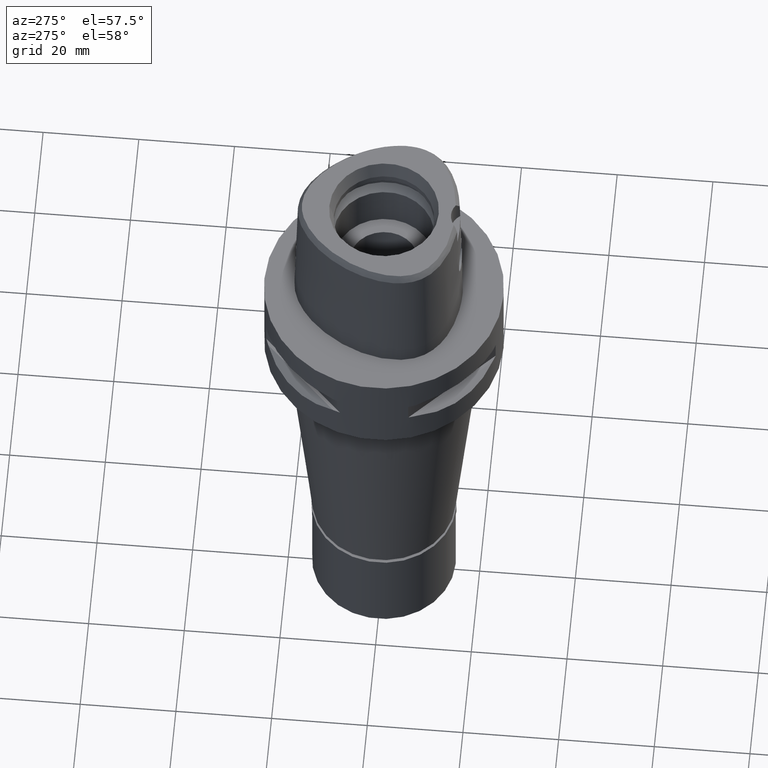
[diagram: clean part render]
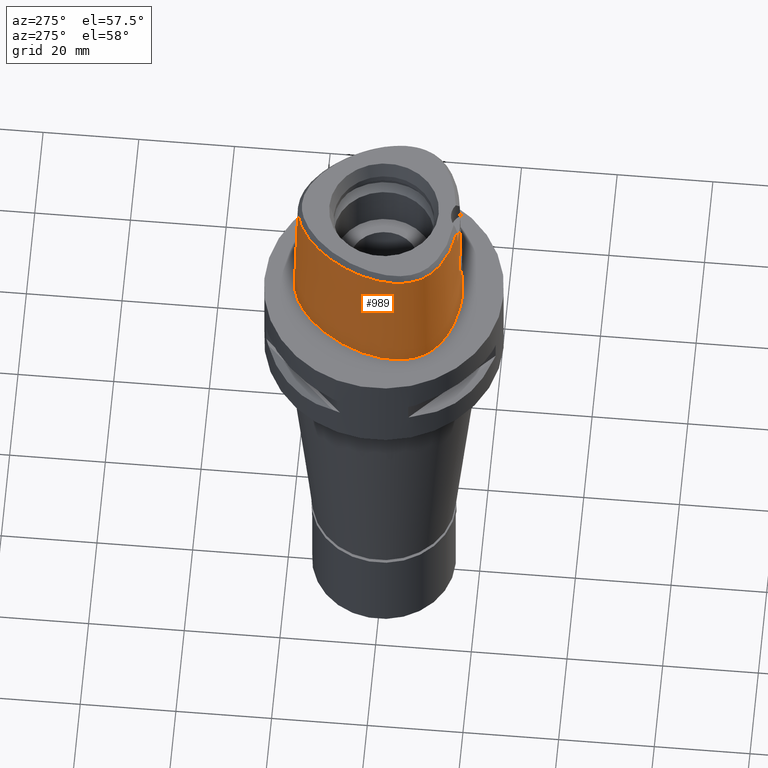
[diagram: same view with one face highlighted and labeled with its STEP entity id]
A machine part, auxiliary view. The second image highlights one B-rep face of the part: STEP entity #989.
In plain terms, the highlighted face is a freeform B-spline surface patch.
Its self-contained STEP definition (entity closure, byte-faithful):
#7 = CARTESIAN_POINT ( 'NONE',  ( -16.53021708525999856, 3.708305584316999859, -0.5704146778458000222 ) ) ;
#55 = CARTESIAN_POINT ( 'NONE',  ( -13.36241663401000146, -12.29868532625000199, 9.316773071482000290 ) ) ;
#78 = CARTESIAN_POINT ( 'NONE',  ( 2.030224829794000080E-07, -15.83752876601000281, 24.70000006102999990 ) ) ;
#84 = CARTESIAN_POINT ( 'NONE',  ( -4.922186781254000110, -15.43572509844000074, 29.09114857014000322 ) ) ;
#85 = CARTESIAN_POINT ( 'NONE',  ( -0.7716804096326577156, -16.02065638628776512, 16.95256773572744180 ) ) ;
#105 = EDGE_CURVE ( 'NONE', #4385, #2100, #3793, .T. ) ;
#106 = CARTESIAN_POINT ( 'NONE',  ( 1.060560759821000065, -15.70738090839000201, 29.09114857014000322 ) ) ;
#107 = CARTESIAN_POINT ( 'NONE',  ( -1.080687980687604410, -16.01283629952124699, 16.85233897233315048 ) ) ;
#116 = CARTESIAN_POINT ( 'NONE',  ( -3.191384176940533557, -15.58827403572775339, 27.24714128231333277 ) ) ;
#158 = CARTESIAN_POINT ( 'NONE',  ( -2.139722381399849827, -15.96867257770622928, 16.17353267031747066 ) ) ;
#175 = CARTESIAN_POINT ( 'NONE',  ( 7.243258786746999801E-11, 18.69499999997999851, 1.586138627847999922E-13 ) ) ;
#201 = CARTESIAN_POINT ( 'NONE',  ( -2.589913444524747366, -16.02530027108256050, 12.38873572170198045 ) ) ;
#234 = CARTESIAN_POINT ( 'NONE',  ( -1.304824586064756042, -16.14367980511039846, 11.24258093297980388 ) ) ;
#300 = CARTESIAN_POINT ( 'NONE',  ( -11.68694516420488760, -13.70394530964122382, 1.311835889211947909E-07 ) ) ;
#312 = CARTESIAN_POINT ( 'NONE',  ( -7.668807715384000190, 15.44980314766999996, 19.20396082081000344 ) ) ;
#337 = CARTESIAN_POINT ( 'NONE',  ( -1.992618747902999754, 18.32080816671000179, 9.316773071482000290 ) ) ;
#360 = CARTESIAN_POINT ( 'NONE',  ( -0.4507704911491000610, 17.98660866496000210, 29.09114857014000322 ) ) ;
#389 = CARTESIAN_POINT ( 'NONE',  ( -16.29641056922999809, 3.623925456147000013, 9.316773071482000290 ) ) ;
#392 = CARTESIAN_POINT ( 'NONE',  ( -3.094715185645000153E-11, 17.98202997909999823, 28.52071728569000086 ) ) ;
#413 = CARTESIAN_POINT ( 'NONE',  ( -17.72574105963000335, -3.269125760297999950, -0.5704146778458000222 ) ) ;
#461 = CARTESIAN_POINT ( 'NONE',  ( -15.78948631527999780, -9.116064173789999003, 19.20396082081000344 ) ) ;
#462 = CARTESIAN_POINT ( 'NONE',  ( -1.331640452534565089, -16.00477934145681047, 16.74576209628363443 ) ) ;
#488 = CARTESIAN_POINT ( 'NONE',  ( -2.757857542921389626, -15.93590525390335344, 15.30389640928843065 ) ) ;
#510 = CARTESIAN_POINT ( 'NONE',  ( -14.25868489179000065, -10.78027802633000221, 29.09114857014000322 ) ) ;
#512 = CARTESIAN_POINT ( 'NONE',  ( -3.027041479268463231, -15.93083733890005682, 14.38613028389027981 ) ) ;
#528 = CARTESIAN_POINT ( 'NONE',  ( -15.58740380354086774, -8.999391780896369042, 28.52071192347005635 ) ) ;
#534 = CARTESIAN_POINT ( 'NONE',  ( -11.44887812848000053, -13.28533852047999986, 19.20396082081000344 ) ) ;
#535 = CARTESIAN_POINT ( 'NONE',  ( -0.6729281202612352741, -16.02259025627639488, 16.97651237904581123 ) ) ;
#584 = CARTESIAN_POINT ( 'NONE',  ( -2.421847348362347496, -16.04659734725423093, 12.14335169878002318 ) ) ;
#602 = CARTESIAN_POINT ( 'NONE',  ( -2.481413756882672850, -16.03938740154342923, 12.22374741087820382 ) ) ;
#712 = CARTESIAN_POINT ( 'NONE',  ( -17.02224577319000076, -0.3128848837978999708, 19.20396082081000344 ) ) ;
#726 = CARTESIAN_POINT ( 'NONE',  ( -13.50690093276619663, -12.48264648179091374, 1.311835889211947909E-07 ) ) ;
#738 = CARTESIAN_POINT ( 'NONE',  ( 0.5455910014330999092, 18.19844124450999701, 19.20396082081000344 ) ) ;
#761 = CARTESIAN_POINT ( 'NONE',  ( -7.514850672415999355, 15.25369622864999997, 29.09114857014000322 ) ) ;
#768 = ORIENTED_EDGE ( 'NONE', *, *, #105, .T. ) ;
#786 = CARTESIAN_POINT ( 'NONE',  ( -16.84071409424999999, -5.352498117318999604, 29.09114857014000322 ) ) ;
#827 = CARTESIAN_POINT ( 'NONE',  ( -16.47905549557009763, -6.962316292880282198, 28.52071192347005635 ) ) ;
#828 = B_SPLINE_CURVE_WITH_KNOTS ( 'NONE', 3,
 ( #2203, #2374, #2350, #3181 ),
 .UNSPECIFIED., .F., .F.,
 ( 4, 4 ),
 ( 0.0000000000000000000, 1.000000000000000000 ),
 .UNSPECIFIED. ) ;
#832 = CARTESIAN_POINT ( 'NONE',  ( 0.7138086210625000927, -15.96808631283000146, 19.20396082081000344 ) ) ;
#845 = ORIENTED_EDGE ( 'NONE', *, *, #1917, .F. ) ;
#862 = CARTESIAN_POINT ( 'NONE',  ( -1.578081282703814647, -15.99520688258742851, 16.61014732801110227 ) ) ;
#885 = CARTESIAN_POINT ( 'NONE',  ( -5.053620743775000257, -16.16974068433999889, -0.5704146778458000222 ) ) ;
#886 = CARTESIAN_POINT ( 'NONE',  ( -1.777739861705566859, -15.98655714082981838, 16.48034954023967202 ) ) ;
#901 = CARTESIAN_POINT ( 'NONE',  ( -3.094715185645000153E-11, 17.98202997909999823, 28.52071728569000086 ) ) ;
#909 = CARTESIAN_POINT ( 'NONE',  ( -2.810669180506640163, -15.93357175435965090, 15.18434255725068383 ) ) ;
#918 = CARTESIAN_POINT ( 'NONE',  ( -3.235121119988999983, -15.64755630481999837, 24.69999999999999929 ) ) ;
#924 = CARTESIAN_POINT ( 'NONE',  ( -17.71143735232331551, -3.269218750022057751, 1.311835889211947909E-07 ) ) ;
#932 = CARTESIAN_POINT ( 'NONE',  ( 6.782386032392523226E-08, -15.90128720080381797, 22.15000025259135086 ) ) ;
#933 = CARTESIAN_POINT ( 'NONE',  ( -1.464230115295341195, -15.99978155752990894, 16.67600899017842764 ) ) ;
#937 = EDGE_CURVE ( 'NONE', #2296, #1189, #4562, .T. ) ;
#976 = CARTESIAN_POINT ( 'NONE',  ( -2.167461438340669400, -16.07478142648848873, 11.85411610869220844 ) ) ;
#989 = ADVANCED_FACE ( 'NONE', ( #2243 ), #2235, .T. ) ;
#990 = CARTESIAN_POINT ( 'NONE',  ( -1.298308557584999745, -16.00668751181000005, 19.20396082081000344 ) ) ;
#998 = CARTESIAN_POINT ( 'NONE',  ( 0.0000000000000000000, -16.02877864023999877, 17.05000000000000071 ) ) ;
#1024 = CARTESIAN_POINT ( 'NONE',  ( -11.46563507770985524, 12.45218749787802182, 1.311835889211947909E-07 ) ) ;
#1035 = CARTESIAN_POINT ( 'NONE',  ( -2.676760126932850259, -16.01335860443739278, 12.53714519678957551 ) ) ;
#1116 = CARTESIAN_POINT ( 'NONE',  ( -1.941729202847999991, 18.07741836403999969, 19.20396082081000344 ) ) ;
#1141 = CARTESIAN_POINT ( 'NONE',  ( -2.043508292958999828, 18.56419796938000033, -0.5704146778458000222 ) ) ;
#1162 = ORIENTED_EDGE ( 'NONE', *, *, #4337, .T. ) ;
#1164 = CARTESIAN_POINT ( 'NONE',  ( -11.28662494105000036, 12.30111481314999899, 9.316773071482000290 ) ) ;
#1166 = DIRECTION ( 'NONE',  ( 3.623592351940885255E-12, 0.02499051285796925065, -0.9996876883642689116 ) ) ;
#1189 = VERTEX_POINT ( 'NONE', #3495 ) ;
#1193 = CARTESIAN_POINT ( 'NONE',  ( -0.4893119563385999737, 18.72969240733000262, -0.5704146778458000222 ) ) ;
#1213 = CARTESIAN_POINT ( 'NONE',  ( -1.321318947042000147, -16.50155084566999975, -0.5704146778458000222 ) ) ;
#1214 = CARTESIAN_POINT ( 'NONE',  ( -2.727932080404931181, -15.93733995233630552, 15.36492654819695858 ) ) ;
#1234 = CARTESIAN_POINT ( 'NONE',  ( -16.00353255302000122, -8.149703182312000749, 29.09114857014000322 ) ) ;
#1235 = CARTESIAN_POINT ( 'NONE',  ( -1.142332392165549937, -16.01097948216498068, 16.82800652385463280 ) ) ;
#1259 = CARTESIAN_POINT ( 'NONE',  ( -15.57503089917999972, -8.992248281211999483, 29.09114857014000322 ) ) ;
#1260 = CARTESIAN_POINT ( 'NONE',  ( -2.789432624428044960, -15.93448362604005197, 15.23385107220370216 ) ) ;
#1266 = EDGE_CURVE ( 'NONE', #2964, #3806, #4324, .T. ) ;
#1272 = CARTESIAN_POINT ( 'NONE',  ( -3.213444811939455636, -15.61774738279276953, 25.97357064115666603 ) ) ;
#1281 = CARTESIAN_POINT ( 'NONE',  ( -1.893775706183914664, 17.84807082153736602, 28.52071192347005635 ) ) ;
#1285 = CARTESIAN_POINT ( 'NONE',  ( -15.05961625865000109, -9.784614150223999829, 29.09114857014000322 ) ) ;
#1286 = CARTESIAN_POINT ( 'NONE',  ( -3.044373801969535442, -15.93377869067411723, 14.19140803545593954 ) ) ;
#1302 = CARTESIAN_POINT ( 'NONE',  ( -4.728927205406693091, 17.73480468449544034, 1.311835889211947909E-07 ) ) ;
#1308 = CARTESIAN_POINT ( 'NONE',  ( -3.048918288824035816, -15.93569181003061708, 14.09458409078624008 ) ) ;
#1356 = CARTESIAN_POINT ( 'NONE',  ( 2.030224829794000080E-07, -15.83752876601000281, 24.70000006102999990 ) ) ;
#1357 = CARTESIAN_POINT ( 'NONE',  ( -2.277845221344286131, -16.06297226044949511, 11.97064251377639188 ) ) ;
#1382 = CARTESIAN_POINT ( 'NONE',  ( -0.3804472261492219953, -16.18126839358999902, 10.95000000000000107 ) ) ;
#1426 = CARTESIAN_POINT ( 'NONE',  ( -1.728596458623000130E-11, -16.45500000000000185, 1.597610932435999867E-13 ) ) ;
#1447 = VERTEX_POINT ( 'NONE', #4477 ) ;
#1466 = CARTESIAN_POINT ( 'NONE',  ( -14.17736240039999984, 8.185312175179999983, 9.316773071482000290 ) ) ;
#1491 = CARTESIAN_POINT ( 'NONE',  ( -17.47781019000000313, -3.270737581811000272, 9.316773071482000290 ) ) ;
#1519 = CARTESIAN_POINT ( 'NONE',  ( -13.96223224902000126, 8.061115401903000688, 19.20396082081000344 ) ) ;
#1544 = CARTESIAN_POINT ( 'NONE',  ( -17.33218229587000181, -5.422849682998000631, 9.316773071482000290 ) ) ;
#1571 = CARTESIAN_POINT ( 'NONE',  ( -4.628819265856999543, 17.52182796168999701, 9.316773071482000290 ) ) ;
#1616 = CARTESIAN_POINT ( 'NONE',  ( -14.26907056455454637, -10.79012254419459715, 28.52071192347005635 ) ) ;
#1620 = CARTESIAN_POINT ( 'NONE',  ( 1.079551361443000124, -16.20136644857999997, 9.316773071482000290 ) ) ;
#1635 = CARTESIAN_POINT ( 'NONE',  ( -13.75951393052603500, 7.944084103042205136, 28.52071192347005635 ) ) ;
#1641 = CARTESIAN_POINT ( 'NONE',  ( -3.033174470079158969, -15.94941370605618047, 13.62317640955322418 ) ) ;
#1667 = CARTESIAN_POINT ( 'NONE',  ( -11.32630896074000049, -13.06981819191000049, 29.09114857014000322 ) ) ;
#1694 = CARTESIAN_POINT ( 'NONE',  ( -2.152758532514000202E-12, -16.18126839358999902, 10.94999999999999929 ) ) ;
#1698 = CARTESIAN_POINT ( 'NONE',  ( -2.816407481551031378, -15.93333177460183236, 15.17063687596105837 ) ) ;
#1720 = CARTESIAN_POINT ( 'NONE',  ( -1.858121229638787231, -15.98284882596964707, 16.42071856142420927 ) ) ;
#1741 = CARTESIAN_POINT ( 'NONE',  ( -2.543826128444698575, -16.03134158490991368, 12.31726274100101115 ) ) ;
#1759 = CARTESIAN_POINT ( 'NONE',  ( -13.05575607724000164, -11.90823715388999915, 29.09114857014000322 ) ) ;
#1768 = CARTESIAN_POINT ( 'NONE',  ( -2.909137552899560220, -15.97627371699405785, 13.08234413149730102 ) ) ;
#1804 = CARTESIAN_POINT ( 'NONE',  ( -2.040572356992104819, 18.55015624676588715, 1.311835889211947909E-07 ) ) ;
#1811 = CARTESIAN_POINT ( 'NONE',  ( -1.572520811365276439, -16.12649376600636231, 11.38472095010702922 ) ) ;
#1887 = CARTESIAN_POINT ( 'NONE',  ( -4.416345268719000572, 17.06979572732999983, 29.09114857014000322 ) ) ;
#1917 = EDGE_CURVE ( 'NONE', #1189, #3218, #2163, .T. ) ;
#1939 = ORIENTED_EDGE ( 'NONE', *, *, #4638, .T. ) ;
#1942 = CARTESIAN_POINT ( 'NONE',  ( 0.3838142946063000105, 18.70350312465999920, -0.5704146778458000222 ) ) ;
#1958 = CARTESIAN_POINT ( 'NONE',  ( -13.06460239553142699, -11.91950051571675218, 28.52071192347005635 ) ) ;
#1989 = CARTESIAN_POINT ( 'NONE',  ( -11.69401646396999972, -13.71637917760999947, -0.5704146778458000222 ) ) ;
#1992 = CARTESIAN_POINT ( 'NONE',  ( -1.671121799475667746, -15.99125384014665485, 16.55147925627117544 ) ) ;
#1997 = VECTOR ( 'NONE', #3479, 1000.000000000000114 ) ;
#2017 = CARTESIAN_POINT ( 'NONE',  ( 1.089046662253999820, -16.44835921866999939, -0.5704146778458000222 ) ) ;
#2018 = CARTESIAN_POINT ( 'NONE',  ( -1.246904710687278373, -16.00770134240468678, 16.78481881917275587 ) ) ;
#2039 = CARTESIAN_POINT ( 'NONE',  ( -11.57144729622999968, -13.50085884904999922, 9.316773071482000290 ) ) ;
#2040 = CARTESIAN_POINT ( 'NONE',  ( -1.154649350552923170, -16.01059875151096890, 16.82300001247303811 ) ) ;
#2065 = CARTESIAN_POINT ( 'NONE',  ( -2.094858927816013683, -15.97106233740291614, 16.21701581232884237 ) ) ;
#2093 = CARTESIAN_POINT ( 'NONE',  ( -0.3789226270081168524, -16.02723154424909779, 17.03294418566285984 ) ) ;
#2099 = ORIENTED_EDGE ( 'NONE', *, *, #2251, .F. ) ;
#2100 = VERTEX_POINT ( 'NONE', #4516 ) ;
#2115 = CARTESIAN_POINT ( 'NONE',  ( -2.828519626698023259, -15.99018834924776833, 12.85893844538390596 ) ) ;
#2137 = CARTESIAN_POINT ( 'NONE',  ( -2.835998777458597075, -15.98895818849806183, 12.87753709205197872 ) ) ;
#2159 = CARTESIAN_POINT ( 'NONE',  ( -2.651693848326381442, -16.01689519106156823, 12.49206992028041441 ) ) ;
#2163 = B_SPLINE_CURVE_WITH_KNOTS ( 'NONE', 3,
 ( #3994, #4668, #2093, #535, #85, #2812, #3943, #107, #3157, #1235, #2040, #4293, #2018, #462, #933, #4744, #862, #4347, #3560, #1992, #3964, #886, #1720, #3191, #2383, #2065, #3589, #158, #4721, #3612, #2357, #3889, #4694, #1214, #488, #1260, #3919, #909, #2833, #1698, #4371, #3213, #2737, #512, #3537, #1286, #1308, #3511, #2463, #1641, #2789, #4321, #1768, #2931, #4109, #2137, #2115, #3263, #4439, #3632, #4792, #1035, #2159, #2883, #201, #2209, #2183, #1741, #602, #584, #4464, #1357, #4415, #4016, #4493, #976, #4767, #2508, #1811, #4035, #3658, #234, #2580, #2531, #3737, #4061, #3284, #4815, #1382, #2904 ),
 .UNSPECIFIED., .F., .F.,
 ( 4, 2, 2, 1, 1, 1, 2, 2, 2, 2, 1, 2, 2, 2, 1, 1, 2, 2, 2, 2, 1, 1, 1, 2, 2, 2, 2, 2, 2, 2, 2, 1, 1, 1, 2, 2, 2, 2, 1, 2, 2, 2, 1, 1, 2, 2, 2, 2, 1, 1, 1, 2, 2, 4 ),
 ( 0.0000000000000000000, 0.06250000000001754152, 0.09375000000002620126, 0.1093750000000305450, 0.1171875000000329042, 0.1210937500000342365, 0.1230468750000351247, 0.1250000000000359990, 0.1562500000000493494, 0.1718750000000557332, 0.1796875000000589251, 0.1835937500000605072, 0.1875000000000620615, 0.2187500000000706935, 0.2343750000000746625, 0.2421875000000770217, 0.2460937500000781875, 0.2500000000000793254, 0.3125000000000955902, 0.3437500000001037503, 0.3593750000001078027, 0.3671875000001095235, 0.3710937500001103562, 0.3730468750001104672, 0.3750000000001105782, 0.4375000000001104672, 0.4687500000001104117, 0.4843750000001104117, 0.5000000000001103562, 0.5625000000001096900, 0.5937500000001090239, 0.6093750000001089129, 0.6171875000001089129, 0.6210937500001089129, 0.6230468750001089129, 0.6250000000001089129, 0.6562500000001036948, 0.6718750000001010303, 0.6796875000000999201, 0.6835937500000992539, 0.6875000000000985878, 0.7187500000000892619, 0.7343750000000845990, 0.7421875000000822675, 0.7460937500000810463, 0.7500000000000798250, 0.8125000000000598410, 0.8437500000000500711, 0.8593750000000450751, 0.8671875000000426326, 0.8710937500000413003, 0.8730468750000406342, 0.8750000000000399680, 1.000000000000000000 ),
 .UNSPECIFIED. ) ;
#2176 = CARTESIAN_POINT ( 'NONE',  ( -17.49754711982549082, -0.2285937505758003085, 1.311835889211947909E-07 ) ) ;
#2183 = CARTESIAN_POINT ( 'NONE',  ( -2.552453281222698322, -16.03022206925516002, 12.33036638904129667 ) ) ;
#2203 = CARTESIAN_POINT ( 'NONE',  ( 2.030224829794000080E-07, -15.83752876601000281, 24.70000006102999990 ) ) ;
#2209 = CARTESIAN_POINT ( 'NONE',  ( -2.567601606275564219, -16.02824055683993620, 12.35375696231732690 ) ) ;
#2222 = EDGE_CURVE ( 'NONE', #2964, #4385, #3167, .T. ) ;
#2235 = B_SPLINE_SURFACE_WITH_KNOTS ( 'NONE', 3, 3, ( 
 ( #4620, #2335, #738, #3818 ),
 ( #1942, #3461, #3038, #3087 ),
 ( #1193, #4595, #3791, #360 ),
 ( #1141, #337, #1116, #2613 ),
 ( #3438, #1571, #2714, #1887 ),
 ( #2663, #4947, #312, #761 ),
 ( #3062, #1164, #2685, #2289 ),
 ( #4898, #1466, #1519, #3366 ),
 ( #7, #389, #4573, #4245 ),
 ( #2986, #4143, #712, #3767 ),
 ( #413, #1491, #4190, #3009 ),
 ( #4547, #1544, #4218, #786 ),
 ( #2638, #2316, #3846, #3535 ),
 ( #2356, #2408, #2382, #1234 ),
 ( #4431, #4645, #461, #1259 ),
 ( #2811, #4320, #4267, #1285 ),
 ( #2736, #3963, #3587, #510 ),
 ( #4346, #55, #4292, #1759 ),
 ( #1989, #2039, #534, #1667 ),
 ( #3190, #3510, #3942, #4807 ),
 ( #885, #3888, #3113, #84 ),
 ( #1213, #3918, #990, #3864 ),
 ( #2788, #2896, #832, #3276 ),
 ( #2017, #1620, #3135, #106 ) ),
 .UNSPECIFIED., .F., .F., .F.,
 ( 4, 1, 1, 1, 1, 1, 1, 1, 1, 1, 1, 1, 1, 1, 1, 1, 1, 1, 1, 1, 1, 4 ),
 ( 4, 4 ),
 ( -0.01173812893898000011, 0.0000000000000000000, 0.04166666666808999803, 0.08333333333469000737, 0.1666666666679000042, 0.2500000000011000090, 0.3333333333342999860, 0.4166666666675999942, 0.5000000000008000267, 0.5416666666674000430, 0.5833333333340000593, 0.6250000000005999645, 0.6458333333339000282, 0.6666666666671999808, 0.6875000000005000445, 0.7083333333337999971, 0.7500000000004000134, 0.7916666666671000607, 0.8333333333336000459, 0.9166666666668999985, 1.000000000000000000, 1.017968513185000035 ),
 ( 2.190544474977999835E-09, 0.9999998882822999091 ),
 .UNSPECIFIED. ) ;
#2243 = FACE_OUTER_BOUND ( 'NONE', #3020, .T. ) ;
#2251 = EDGE_CURVE ( 'NONE', #3218, #1447, #3151, .T. ) ;
#2289 = CARTESIAN_POINT ( 'NONE',  ( -10.90668505380999953, 11.98047074307999971, 29.09114857014000322 ) ) ;
#2296 = VERTEX_POINT ( 'NONE', #78 ) ;
#2305 = CARTESIAN_POINT ( 'NONE',  ( -14.78833380161314182, -11.28232909929586114, 1.311835889211947909E-07 ) ) ;
#2310 = CARTESIAN_POINT ( 'NONE',  ( -3.738627773282514166, -15.49270868799856515, 28.52071192347005990 ) ) ;
#2316 = CARTESIAN_POINT ( 'NONE',  ( -16.94089130461999915, -7.099401461215999909, 9.316773071482000290 ) ) ;
#2335 = CARTESIAN_POINT ( 'NONE',  ( 0.5606135752712000375, 18.44514042205999971, 9.316773071482000290 ) ) ;
#2350 = CARTESIAN_POINT ( 'NONE',  ( -2.169052023958243591, -15.77399788493505106, 24.70000016923103914 ) ) ;
#2351 = CARTESIAN_POINT ( 'NONE',  ( -4.422474562381911944, 17.08283562090198870, 28.52071192347005635 ) ) ;
#2356 = CARTESIAN_POINT ( 'NONE',  ( -16.68217932077000043, -8.451606616523999804, -0.5704146778458000222 ) ) ;
#2357 = CARTESIAN_POINT ( 'NONE',  ( -2.453157249243884674, -15.95160785209461629, 15.82331514068931178 ) ) ;
#2374 = CARTESIAN_POINT ( 'NONE',  ( -1.084489118009119624, -15.83754148632551129, 24.70000016923103914 ) ) ;
#2382 = CARTESIAN_POINT ( 'NONE',  ( -16.22974814227000095, -8.250337660382999871, 19.20396082081000344 ) ) ;
#2383 = CARTESIAN_POINT ( 'NONE',  ( -2.030787586190755611, -15.97439197203214256, 16.27657083949467776 ) ) ;
#2403 = CARTESIAN_POINT ( 'NONE',  ( -7.523733151594957924, 15.26501052510220546, 28.52071192347005635 ) ) ;
#2408 = CARTESIAN_POINT ( 'NONE',  ( -16.45596373151999714, -8.350972138453000682, 9.316773071482000290 ) ) ;
#2455 = CARTESIAN_POINT ( 'NONE',  ( -17.56373942607460137, -5.455996093283419057, 1.311835889211947909E-07 ) ) ;
#2456 = CARTESIAN_POINT ( 'NONE',  ( -10.91764528035308324, 11.98972044748215460, 28.52071192347005635 ) ) ;
#2463 = CARTESIAN_POINT ( 'NONE',  ( -3.049900212868041471, -15.94261167837582605, 13.81468546120741969 ) ) ;
#2508 = CARTESIAN_POINT ( 'NONE',  ( -1.824495776583463735, -16.10763072133391560, 11.54770719424188208 ) ) ;
#2531 = CARTESIAN_POINT ( 'NONE',  ( -1.200046882047189900, -16.14948273154546143, 11.19596910874565765 ) ) ;
#2552 = CARTESIAN_POINT ( 'NONE',  ( -16.51672824469457623, 3.703437498879941447, 1.311835889211947909E-07 ) ) ;
#2580 = CARTESIAN_POINT ( 'NONE',  ( -1.234760267101117304, -16.14760890805745319, 11.21096960602407933 ) ) ;
#2613 = CARTESIAN_POINT ( 'NONE',  ( -1.890839657793000006, 17.83402856135999670, 29.09114857014000322 ) ) ;
#2638 = CARTESIAN_POINT ( 'NONE',  ( -17.17866842882000000, -7.169980044465999569, -0.5704146778458000222 ) ) ;
#2663 = CARTESIAN_POINT ( 'NONE',  ( -7.976721801318999994, 15.84201698570999994, -0.5704146778458000222 ) ) ;
#2674 = CARTESIAN_POINT ( 'NONE',  ( -8.946741555060219397, -15.03902343439987987, 1.311835889211947909E-07 ) ) ;
#2680 = CARTESIAN_POINT ( 'NONE',  ( -3.168920966622999824, -15.55911077538999976, 28.52071192346999950 ) ) ;
#2685 = CARTESIAN_POINT ( 'NONE',  ( -11.09665499742999906, 12.14079277811000068, 19.20396082081000344 ) ) ;
#2714 = CARTESIAN_POINT ( 'NONE',  ( -4.522582267287999613, 17.29581184451000198, 19.20396082081000344 ) ) ;
#2736 = CARTESIAN_POINT ( 'NONE',  ( -14.79871907679000209, -11.29217324029000125, -0.5704146778458000222 ) ) ;
#2737 = CARTESIAN_POINT ( 'NONE',  ( -3.012997481774252417, -15.92993551890233661, 14.48403558617127018 ) ) ;
#2788 = CARTESIAN_POINT ( 'NONE',  ( 0.7264497205344000452, -16.46229665945999798, -0.5704146778458000222 ) ) ;
#2789 = CARTESIAN_POINT ( 'NONE',  ( -2.977125115133941069, -15.96287852150346609, 13.32982323607647146 ) ) ;
#2807 = CARTESIAN_POINT ( 'NONE',  ( -0.6295828121026167956, 17.98203011042248178, 28.52071192347005635 ) ) ;
#2811 = CARTESIAN_POINT ( 'NONE',  ( -15.66039569321999991, -10.22138777401000098, -0.5704146778458000222 ) ) ;
#2812 = CARTESIAN_POINT ( 'NONE',  ( -0.9200171648280666137, -16.01717542030823083, 16.90838961258444328 ) ) ;
#2822 = CARTESIAN_POINT ( 'NONE',  ( -3.168920966622999824, -15.55911077538999976, 28.52071192346999950 ) ) ;
#2827 = CARTESIAN_POINT ( 'NONE',  ( -7.967839662182041316, 15.83070312239535227, 1.311835889211947909E-07 ) ) ;
#2833 = CARTESIAN_POINT ( 'NONE',  ( -2.814800487489022007, -15.93339868692384265, 15.17448999603935000 ) ) ;
#2883 = CARTESIAN_POINT ( 'NONE',  ( -2.611019405678915550, -16.02245593392160572, 12.42336243517671868 ) ) ;
#2896 = CARTESIAN_POINT ( 'NONE',  ( 0.7201291707983999979, -16.21519148614000017, 9.316773071482000290 ) ) ;
#2904 = CARTESIAN_POINT ( 'NONE',  ( -2.152758532514000202E-12, -16.18126839358999902, 10.94999999999999929 ) ) ;
#2931 = CARTESIAN_POINT ( 'NONE',  ( -2.884965141857490867, -15.98065922520800264, 13.00785839096695362 ) ) ;
#2961 = CARTESIAN_POINT ( 'NONE',  ( -2.152758532514000202E-12, -16.18126839358999902, 10.94999999999999929 ) ) ;
#2964 = VERTEX_POINT ( 'NONE', #3116 ) ;
#2986 = CARTESIAN_POINT ( 'NONE',  ( -17.51166498494999857, -0.2260900529565000039, -0.5704146778458000222 ) ) ;
#3009 = CARTESIAN_POINT ( 'NONE',  ( -16.98194845072000092, -3.273961224837000472, 29.09114857014000322 ) ) ;
#3020 = EDGE_LOOP ( 'NONE', ( #2099, #845, #4955, #1162, #3638, #4758, #768, #1939 ) ) ;
#3038 = CARTESIAN_POINT ( 'NONE',  ( 0.3639062173404999934, 18.20947641431000008, 19.20396082081000344 ) ) ;
#3062 = CARTESIAN_POINT ( 'NONE',  ( -11.47659488466999989, 12.46143684817999997, -0.5704146778458000222 ) ) ;
#3087 = CARTESIAN_POINT ( 'NONE',  ( 0.3539521787075999848, 17.96246305912999830, 29.09114857014000322 ) ) ;
#3113 = CARTESIAN_POINT ( 'NONE',  ( -4.965998102093999833, -15.68039696040999686, 19.20396082081000344 ) ) ;
#3116 = CARTESIAN_POINT ( 'NONE',  ( -3.168920966622999824, -15.55911077538999976, 28.52071192346999950 ) ) ;
#3129 = CARTESIAN_POINT ( 'NONE',  ( -16.85489160761298777, -5.354527567564650425, 28.52071192347005635 ) ) ;
#3135 = CARTESIAN_POINT ( 'NONE',  ( 1.070056060631999983, -15.95437367848000143, 19.20396082081000344 ) ) ;
#3151 = LINE ( 'NONE', #1694, #1997 ) ;
#3157 = CARTESIAN_POINT ( 'NONE',  ( -1.123850819245109101, -16.01154604563820527, 16.83544840130054610 ) ) ;
#3167 = B_SPLINE_CURVE_WITH_KNOTS ( 'NONE', 3,
 ( #2680, #2310, #3881, #4715, #4262, #1958, #1616, #4740, #528, #3530, #827, #3129, #3911, #3581, #4315, #1635, #2456, #2403, #2351, #1281, #2807, #3937 ),
 .UNSPECIFIED., .F., .F.,
 ( 4, 1, 1, 1, 1, 1, 1, 1, 1, 1, 1, 1, 1, 1, 1, 1, 1, 1, 1, 4 ),
 ( 0.0000000000000000000, 0.03108635432773292767, 0.1191694130251540473, 0.1632109423737060638, 0.2072524717224695501, 0.2512940010711273153, 0.2733147657454561008, 0.2953355304197850528, 0.3173562950941138938, 0.3393770597684427903, 0.3834185891171004723, 0.4274601184657582098, 0.4715016478144159473, 0.5595847065117314223, 0.6476677652091525905, 0.7357508239064680655, 0.8238338826037835405, 0.9119169413011096736, 0.9559584706497672446, 1.000000000000000000 ),
 .UNSPECIFIED. ) ;
#3181 = CARTESIAN_POINT ( 'NONE',  ( -3.235121119988999983, -15.64755630481999837, 24.69999999999999929 ) ) ;
#3190 = CARTESIAN_POINT ( 'NONE',  ( -8.951632340766000340, -15.05250171724000019, -0.5704146778458000222 ) ) ;
#3191 = CARTESIAN_POINT ( 'NONE',  ( -1.974011923641827870, -15.97722169910675127, 16.32556985268866256 ) ) ;
#3213 = CARTESIAN_POINT ( 'NONE',  ( -2.955918695227827353, -15.92874700794739695, 14.77770287554773532 ) ) ;
#3218 = VERTEX_POINT ( 'NONE', #2961 ) ;
#3263 = CARTESIAN_POINT ( 'NONE',  ( -2.823487070365291007, -15.99101270351569326, 12.84654193248351994 ) ) ;
#3276 = CARTESIAN_POINT ( 'NONE',  ( 0.7074880713264999343, -15.72098113951000009, 29.09114857014000322 ) ) ;
#3284 = CARTESIAN_POINT ( 'NONE',  ( -1.171575576435078592, -16.15098385800270364, 11.18398276020164239 ) ) ;
#3366 = CARTESIAN_POINT ( 'NONE',  ( -13.74710209763000002, 7.936918628625000416, 29.09114857014000322 ) ) ;
#3438 = CARTESIAN_POINT ( 'NONE',  ( -4.735056264426000361, 17.74784407886999915, -0.5704146778458000222 ) ) ;
#3461 = CARTESIAN_POINT ( 'NONE',  ( 0.3738602559734000574, 18.45648976948000097, 9.316773071482000290 ) ) ;
#3479 = DIRECTION ( 'NONE',  ( -1.381596326697966516E-12, -0.02499051295371941192, -0.9996876883618752707 ) ) ;
#3495 = CARTESIAN_POINT ( 'NONE',  ( 0.0000000000000000000, -16.02877864023999877, 17.05000000000000071 ) ) ;
#3510 = CARTESIAN_POINT ( 'NONE',  ( -8.866858741362001695, -14.81887820174000048, 9.316773071482000290 ) ) ;
#3511 = CARTESIAN_POINT ( 'NONE',  ( -3.050024389103566325, -15.93682728871436893, 14.04426652284398180 ) ) ;
#3530 = CARTESIAN_POINT ( 'NONE',  ( -16.01658395503924481, -8.155509241189973224, 28.52071192347005635 ) ) ;
#3535 = CARTESIAN_POINT ( 'NONE',  ( -16.46533705622999832, -6.958244294717000678, 29.09114857014000322 ) ) ;
#3537 = CARTESIAN_POINT ( 'NONE',  ( -3.040936525959273329, -15.93294854341571742, 14.23999838212789015 ) ) ;
#3560 = CARTESIAN_POINT ( 'NONE',  ( -1.647720974870742205, -15.99226611569844536, 16.56665347346226369 ) ) ;
#3581 = CARTESIAN_POINT ( 'NONE',  ( -16.79165457291988162, -0.3537785057482672468, 28.52071192347005635 ) ) ;
#3587 = CARTESIAN_POINT ( 'NONE',  ( -14.43869628678999995, -10.95090976431000129, 19.20396082081000344 ) ) ;
#3589 = CARTESIAN_POINT ( 'NONE',  ( -2.121841374835715666, -15.96962928976705598, 16.19099185722724954 ) ) ;
#3611 = CARTESIAN_POINT ( 'NONE',  ( 6.797909984712326668E-08, -15.96503292052290846, 19.60000012629567578 ) ) ;
#3612 = CARTESIAN_POINT ( 'NONE',  ( -2.319868985695882735, -15.95889227881325567, 15.99336665119923140 ) ) ;
#3632 = CARTESIAN_POINT ( 'NONE',  ( -2.785351805581205653, -15.99721084885908517, 12.75429401941337026 ) ) ;
#3638 = ORIENTED_EDGE ( 'NONE', *, *, #1266, .F. ) ;
#3658 = CARTESIAN_POINT ( 'NONE',  ( -1.365876440251320822, -16.14000093520540702, 11.27254294478961327 ) ) ;
#3727 = CARTESIAN_POINT ( 'NONE',  ( -17.16495051465363630, -7.165908202188214560, 1.311835889211947909E-07 ) ) ;
#3737 = CARTESIAN_POINT ( 'NONE',  ( -1.185240961617855637, -16.15026635704342439, 11.18970954939989504 ) ) ;
#3758 = B_SPLINE_CURVE_WITH_KNOTS ( 'NONE', 3,
 ( #175, #4459, #1804, #1302, #2827, #1024, #4363, #2552, #2176, #924, #2455, #3727, #4885, #4533, #4561, #2305, #726, #300, #2674, #3834, #4584, #1426 ),
 .UNSPECIFIED., .F., .F.,
 ( 4, 1, 1, 1, 1, 1, 1, 1, 1, 1, 1, 1, 1, 1, 1, 1, 1, 1, 1, 4 ),
 ( 0.0000000000000000000, 0.04166666666808999803, 0.08333333333469000737, 0.1666666666679000042, 0.2500000000011000090, 0.3333333333342999860, 0.4166666666675999942, 0.5000000000008000267, 0.5416666666674000430, 0.5833333333340000593, 0.6250000000005999645, 0.6458333333339000282, 0.6666666666671999808, 0.6875000000005000445, 0.7083333333337999971, 0.7500000000004000134, 0.7916666666671000607, 0.8333333333336000459, 0.9166666666668999985, 1.000000000000000000 ),
 .UNSPECIFIED. ) ;
#3767 = CARTESIAN_POINT ( 'NONE',  ( -16.77753616731000008, -0.3562822992185999960, 29.09114857014000322 ) ) ;
#3791 = CARTESIAN_POINT ( 'NONE',  ( -0.4636176462122000297, 18.23430324575000228, 19.20396082081000344 ) ) ;
#3793 = LINE ( 'NONE', #392, #3830 ) ;
#3806 = VERTEX_POINT ( 'NONE', #4259 ) ;
#3818 = CARTESIAN_POINT ( 'NONE',  ( 0.5305684275949998918, 17.95174206696000141, 29.09114857014000322 ) ) ;
#3830 = VECTOR ( 'NONE', #1166, 1000.000000000000227 ) ;
#3834 = CARTESIAN_POINT ( 'NONE',  ( -5.051093166991400096, -16.15562499674982533, 1.311835889211947909E-07 ) ) ;
#3846 = CARTESIAN_POINT ( 'NONE',  ( -16.70311418042999918, -7.028822877966000249, 19.20396082081000344 ) ) ;
#3864 = CARTESIAN_POINT ( 'NONE',  ( -1.286803362857000144, -15.75925584489000109, 29.09114857014000322 ) ) ;
#3881 = CARTESIAN_POINT ( 'NONE',  ( -5.902447850708668398, -15.16907854011562407, 28.52071192347005635 ) ) ;
#3888 = CARTESIAN_POINT ( 'NONE',  ( -5.009809422934999645, -15.92506882237999832, 9.316773071482000290 ) ) ;
#3889 = CARTESIAN_POINT ( 'NONE',  ( -2.615901618694458364, -15.94298692150383445, 15.57147967510175057 ) ) ;
#3911 = CARTESIAN_POINT ( 'NONE',  ( -16.99625270562737001, -3.273868231552942376, 28.52071192347005635 ) ) ;
#3918 = CARTESIAN_POINT ( 'NONE',  ( -1.309813752313999879, -16.25411917873999812, 9.316773071482000290 ) ) ;
#3919 = CARTESIAN_POINT ( 'NONE',  ( -2.804416461968547214, -15.93383585885220199, 15.19914549896493483 ) ) ;
#3937 = CARTESIAN_POINT ( 'NONE',  ( -3.094715185645000153E-11, 17.98202997909999823, 28.52071728569000086 ) ) ;
#3942 = CARTESIAN_POINT ( 'NONE',  ( -8.782085141957999497, -14.58525468622999810, 19.20396082081000344 ) ) ;
#3943 = CARTESIAN_POINT ( 'NONE',  ( -0.9942354941246660527, -16.01528989706931583, 16.88423654522987860 ) ) ;
#3963 = CARTESIAN_POINT ( 'NONE',  ( -14.61870768179000102, -11.12154150230000127, 9.316773071482000290 ) ) ;
#3964 = CARTESIAN_POINT ( 'NONE',  ( -1.684236301195920049, -15.99068050411802844, 16.54283389550613492 ) ) ;
#3994 = CARTESIAN_POINT ( 'NONE',  ( 0.0000000000000000000, -16.02877864023999877, 17.05000000000000071 ) ) ;
#4016 = CARTESIAN_POINT ( 'NONE',  ( -2.192347023516921567, -16.07215629485220276, 11.87955887064568472 ) ) ;
#4035 = CARTESIAN_POINT ( 'NONE',  ( -1.489022098416998618, -16.13222843889018421, 11.33656707562816379 ) ) ;
#4061 = CARTESIAN_POINT ( 'NONE',  ( -1.175386497639794747, -16.15078445366180304, 11.18557374674748139 ) ) ;
#4109 = CARTESIAN_POINT ( 'NONE',  ( -2.852964108056993631, -15.98613240798082913, 12.92095709857081154 ) ) ;
#4143 = CARTESIAN_POINT ( 'NONE',  ( -17.26695537907000144, -0.2694874683772000012, 9.316773071482000290 ) ) ;
#4190 = CARTESIAN_POINT ( 'NONE',  ( -17.22987932035999847, -3.272349403324000150, 19.20396082081000344 ) ) ;
#4218 = CARTESIAN_POINT ( 'NONE',  ( -17.08644819506000090, -5.387673900158000073, 19.20396082081000344 ) ) ;
#4245 = CARTESIAN_POINT ( 'NONE',  ( -15.82879753715999982, 3.455165199806000231, 29.09114857014000322 ) ) ;
#4259 = CARTESIAN_POINT ( 'NONE',  ( -3.235121119988999983, -15.64755630481999837, 24.69999999999999929 ) ) ;
#4262 = CARTESIAN_POINT ( 'NONE',  ( -11.33338053122126077, -13.08225253589492354, 28.52071192347005635 ) ) ;
#4267 = CARTESIAN_POINT ( 'NONE',  ( -15.25987607016999803, -9.930205358153999740, 19.20396082081000344 ) ) ;
#4292 = CARTESIAN_POINT ( 'NONE',  ( -13.20908635562999933, -12.10346124007000057, 19.20396082081000344 ) ) ;
#4293 = CARTESIAN_POINT ( 'NONE',  ( -1.161963448143040978, -16.01037049747070284, 16.81999471490744824 ) ) ;
#4315 = CARTESIAN_POINT ( 'NONE',  ( -15.84228689412991997, 3.460033471611873246, 28.52071192347005635 ) ) ;
#4320 = CARTESIAN_POINT ( 'NONE',  ( -15.46013588169999942, -10.07579656607999929, 9.316773071482000290 ) ) ;
#4321 = CARTESIAN_POINT ( 'NONE',  ( -2.953287761239755227, -15.96791042230702473, 13.23104891048716070 ) ) ;
#4324 = B_SPLINE_CURVE_WITH_KNOTS ( 'NONE', 3,
 ( #2822, #116, #1272, #918 ),
 .UNSPECIFIED., .F., .F.,
 ( 4, 4 ),
 ( 0.0000000000000000000, 1.000000000000000000 ),
 .UNSPECIFIED. ) ;
#4337 = EDGE_CURVE ( 'NONE', #2296, #3806, #828, .T. ) ;
#4346 = CARTESIAN_POINT ( 'NONE',  ( -13.51574691239999915, -12.49390941243000164, -0.5704146778458000222 ) ) ;
#4347 = CARTESIAN_POINT ( 'NONE',  ( -1.612726137497974888, -15.99376531707287086, 16.58900383221054398 ) ) ;
#4363 = CARTESIAN_POINT ( 'NONE',  ( -14.38008119404777041, 8.302343748351805885, 1.311835889211947909E-07 ) ) ;
#4371 = CARTESIAN_POINT ( 'NONE',  ( -2.897875851387719415, -15.92997726602834696, 14.97345579578014174 ) ) ;
#4385 = VERTEX_POINT ( 'NONE', #901 ) ;
#4415 = CARTESIAN_POINT ( 'NONE',  ( -2.218346767529075336, -16.06939536445591088, 11.90655067609824513 ) ) ;
#4431 = CARTESIAN_POINT ( 'NONE',  ( -16.21839714749000194, -9.363695958946001596, -0.5704146778458000222 ) ) ;
#4439 = CARTESIAN_POINT ( 'NONE',  ( -2.820449305715950761, -15.99150796465938207, 12.83914045378501712 ) ) ;
#4459 = CARTESIAN_POINT ( 'NONE',  ( -0.6801907856321687262, 18.69499999671970158, 1.311835889211947909E-07 ) ) ;
#4464 = CARTESIAN_POINT ( 'NONE',  ( -2.326795673539217901, -16.05749942887526061, 12.02743345691523835 ) ) ;
#4477 = CARTESIAN_POINT ( 'NONE',  ( -1.728596458623000130E-11, -16.45500000000000185, 1.597610932435999867E-13 ) ) ;
#4493 = CARTESIAN_POINT ( 'NONE',  ( -2.174903967715937636, -16.07399873101337207, 11.86167149722162861 ) ) ;
#4516 = CARTESIAN_POINT ( 'NONE',  ( 7.243258786746999801E-11, 18.69499999997999851, 1.586138627847999922E-13 ) ) ;
#4533 = CARTESIAN_POINT ( 'NONE',  ( -16.20602471679266543, -9.356552732731397981, 1.311835889211947909E-07 ) ) ;
#4547 = CARTESIAN_POINT ( 'NONE',  ( -17.57791639669000006, -5.458025465837000212, -0.5704146778458000222 ) ) ;
#4561 = CARTESIAN_POINT ( 'NONE',  ( -15.64884223989832002, -10.21298827931310349, 1.311835889211947909E-07 ) ) ;
#4562 = B_SPLINE_CURVE_WITH_KNOTS ( 'NONE', 3,
 ( #1356, #932, #3611, #998 ),
 .UNSPECIFIED., .F., .F.,
 ( 4, 4 ),
 ( 0.0000000000000000000, 1.000000000000000000 ),
 .UNSPECIFIED. ) ;
#4573 = CARTESIAN_POINT ( 'NONE',  ( -16.06260405319999762, 3.539545327977000166, 19.20396082081000344 ) ) ;
#4584 = CARTESIAN_POINT ( 'NONE',  ( -1.683697722334211555, -16.45499999672029645, 1.311835889211947909E-07 ) ) ;
#4595 = CARTESIAN_POINT ( 'NONE',  ( -0.4764648012753999740, 18.48199782653999890, 9.316773071482000290 ) ) ;
#4620 = CARTESIAN_POINT ( 'NONE',  ( 0.5756361491093000549, 18.69183959960999886, -0.5704146778458000222 ) ) ;
#4638 = EDGE_CURVE ( 'NONE', #2100, #1447, #3758, .T. ) ;
#4645 = CARTESIAN_POINT ( 'NONE',  ( -16.00394173138999676, -9.239880066368000300, 9.316773071482000290 ) ) ;
#4668 = CARTESIAN_POINT ( 'NONE',  ( -0.1860095695891537948, -16.02877864023999877, 17.04999999999999716 ) ) ;
#4694 = CARTESIAN_POINT ( 'NONE',  ( -2.663989615078775852, -15.94049756288810826, 15.48802251322130630 ) ) ;
#4715 = CARTESIAN_POINT ( 'NONE',  ( -8.702202515497591051, -14.36510996956042874, 28.52071192347005635 ) ) ;
#4721 = CARTESIAN_POINT ( 'NONE',  ( -2.147290074988020603, -15.96826519308854664, 16.16606823402931425 ) ) ;
#4740 = CARTESIAN_POINT ( 'NONE',  ( -15.07117015428165452, -9.793013966485382582, 28.52071192347005635 ) ) ;
#4744 = CARTESIAN_POINT ( 'NONE',  ( -1.509334869930127443, -15.99801316580342103, 16.65089544972778768 ) ) ;
#4758 = ORIENTED_EDGE ( 'NONE', *, *, #2222, .T. ) ;
#4767 = CARTESIAN_POINT ( 'NONE',  ( -1.994661405230375273, -16.09284332352428493, 11.68121651172144659 ) ) ;
#4792 = CARTESIAN_POINT ( 'NONE',  ( -2.746377481654892705, -16.00326057041239380, 12.66963668950454647 ) ) ;
#4807 = CARTESIAN_POINT ( 'NONE',  ( -8.697311542554000852, -14.35163117072000105, 29.09114857014000322 ) ) ;
#4815 = CARTESIAN_POINT ( 'NONE',  ( -0.7803301224165680727, -16.17127761896326632, 11.02218832487908173 ) ) ;
#4885 = CARTESIAN_POINT ( 'NONE',  ( -16.66912841838875536, -8.445800779915451528, 1.311835889211947909E-07 ) ) ;
#4898 = CARTESIAN_POINT ( 'NONE',  ( -14.39249255179000109, 8.309508948457999367, -0.5704146778458000222 ) ) ;
#4947 = CARTESIAN_POINT ( 'NONE',  ( -7.822764758352000136, 15.64591006668999995, 9.316773071482000290 ) ) ;
#4955 = ORIENTED_EDGE ( 'NONE', *, *, #937, .F. ) ;